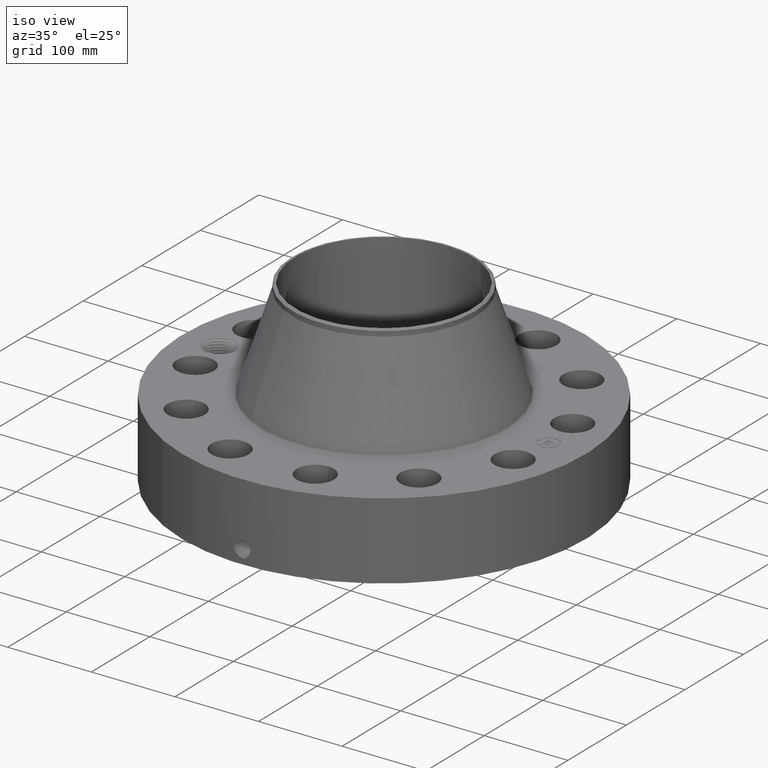
[diagram: clean part render]
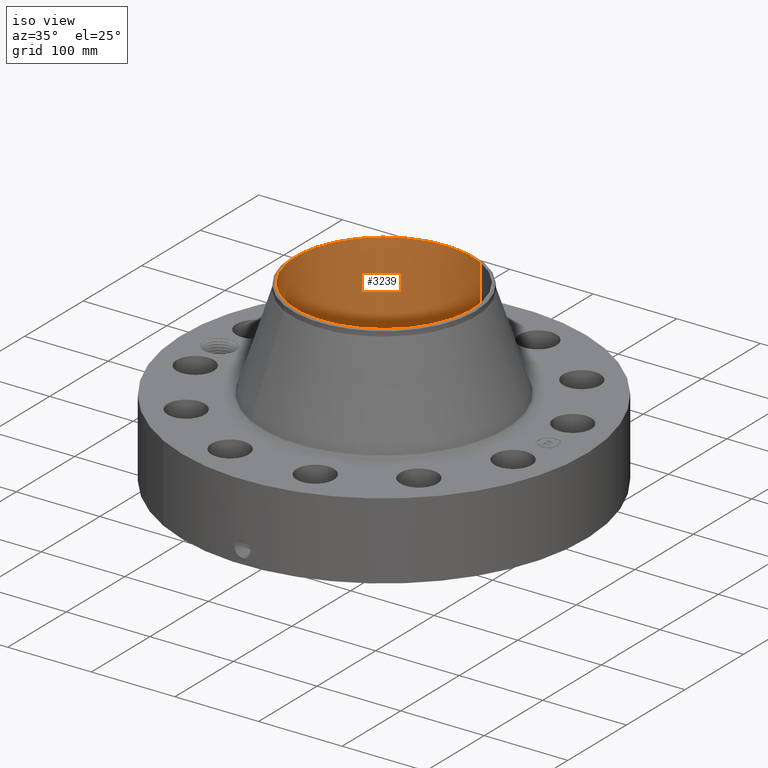
[diagram: same view with one face highlighted and labeled with its STEP entity id]
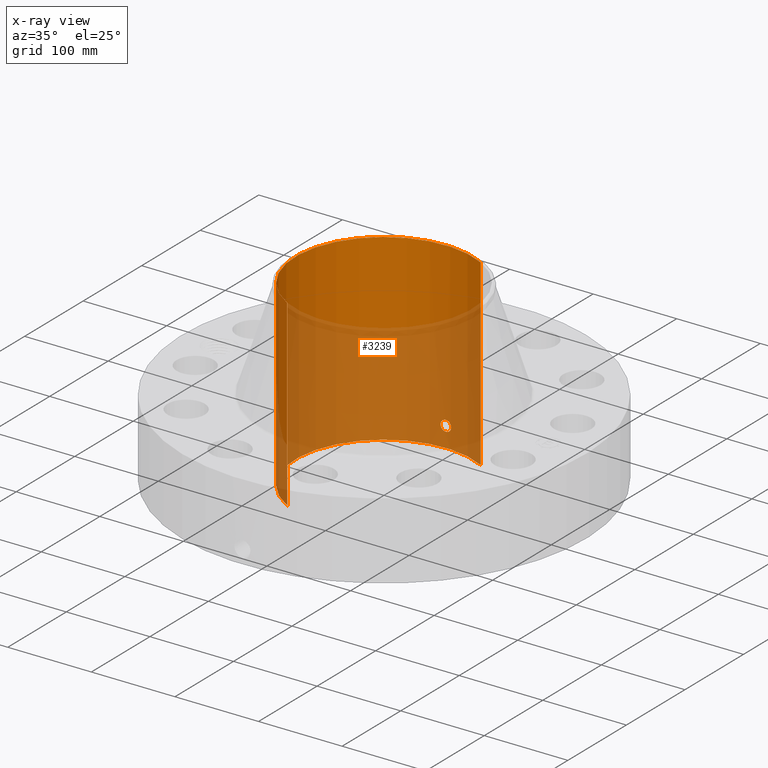
[diagram: x-ray of the same camera — body ghosted, the highlighted face saturated]
A machine part, iso view. The second image highlights one B-rep face of the part: STEP entity #3239.
The next image is the same camera in x-ray: the body ghosted, the highlighted face saturated — about 60% of this face is hidden behind the body in this view.
In plain terms, the highlighted cylindrical surface (partial cylindrical patch) has radius 105.778 mm, axis along (0, 0, -1).
Its self-contained STEP definition (entity closure, byte-faithful):
#2413=AXIS2_PLACEMENT_3D('Circle Axis2P3D',#2411,#2412,$) ;
#3116=AXIS2_PLACEMENT_3D('Cylinder Axis2P3D',#3113,#3114,#3115) ;
#3188=AXIS2_PLACEMENT_3D('Circle Axis2P3D',#3186,#3187,$) ;
#2406=CARTESIAN_POINT('Vertex',(1.99656765553,3.65469257901,-8.95171950564E-015)) ;
#2408=CARTESIAN_POINT('Vertex',(-1.99656765553,-3.65469257901,-8.95171950564E-015)) ;
#2411=CARTESIAN_POINT('Axis2P3D Location',(0.,0.,0.)) ;
#3113=CARTESIAN_POINT('Axis2P3D Location',(0.,0.,4.31500000002)) ;
#3122=CARTESIAN_POINT('Vertex',(1.99656765553,3.65469257901,8.63000000003)) ;
#3124=CARTESIAN_POINT('Vertex',(-1.99656765553,-3.65469257901,8.63000000003)) ;
#3127=CARTESIAN_POINT('Line Origine',(1.99656765553,3.65469257901,4.31500000002)) ;
#3132=CARTESIAN_POINT('Line Origine',(-1.99656765553,-3.65469257901,4.31500000002)) ;
#3186=CARTESIAN_POINT('Axis2P3D Location',(0.,0.,8.63000000003)) ;
#3198=CARTESIAN_POINT('Control Point',(0.219395640473,4.15871684574,1.05985638466)) ;
#3199=CARTESIAN_POINT('Control Point',(0.20692186836,4.15937490719,1.08268947135)) ;
#3200=CARTESIAN_POINT('Control Point',(0.191479061047,4.16014270401,1.10389738261)) ;
#3201=CARTESIAN_POINT('Control Point',(0.173347293486,4.1609608761,1.12296790584)) ;
#3202=CARTESIAN_POINT('Control Point',(0.112151243799,4.16332681788,1.17243876121)) ;
#3203=CARTESIAN_POINT('Control Point',(0.0350073360277,4.16486395592,1.1959675291)) ;
#3204=CARTESIAN_POINT('Control Point',(-0.01953337657,4.16497917884,1.19761227522)) ;
#3205=CARTESIAN_POINT('Control Point',(-0.124110745792,4.16328840941,1.17248379)) ;
#3206=CARTESIAN_POINT('Control Point',(-0.20315085596,4.15978664497,1.09960368609)) ;
#3207=CARTESIAN_POINT('Control Point',(-0.232136287471,4.15806151485,1.05340662425)) ;
#3208=CARTESIAN_POINT('Control Point',(-0.255828007402,4.15663977824,0.975243495852)) ;
#3209=CARTESIAN_POINT('Control Point',(-0.248304892343,4.15709084731,0.895837624091)) ;
#3210=CARTESIAN_POINT('Control Point',(-0.242070589597,4.15747019708,0.869239689276)) ;
#3211=CARTESIAN_POINT('Control Point',(-0.23232906595,4.15803453501,0.843818091886)) ;
#3212=CARTESIAN_POINT('Control Point',(-0.219395640473,4.15871684574,0.820143615352)) ;
#3213=CARTESIAN_POINT('Vertex',(0.219395640473,4.15871684574,1.05985638466)) ;
#3215=CARTESIAN_POINT('Vertex',(-0.219395640473,4.15871684574,0.820143615352)) ;
#3219=CARTESIAN_POINT('Control Point',(-0.219395640473,4.15871684574,0.820143615352)) ;
#3220=CARTESIAN_POINT('Control Point',(-0.206921868349,4.15937490719,0.797310528635)) ;
#3221=CARTESIAN_POINT('Control Point',(-0.19147906102,4.16014270401,0.776102617358)) ;
#3222=CARTESIAN_POINT('Control Point',(-0.173347293524,4.1609608761,0.757032094201)) ;
#3223=CARTESIAN_POINT('Control Point',(-0.112151243813,4.16332681788,0.707561238792)) ;
#3224=CARTESIAN_POINT('Control Point',(-0.0350073360044,4.16486395592,0.684032470899)) ;
#3225=CARTESIAN_POINT('Control Point',(0.0195333765379,4.16497917884,0.682387724782)) ;
#3226=CARTESIAN_POINT('Control Point',(0.124110745843,4.16328840941,0.707516210014)) ;
#3227=CARTESIAN_POINT('Control Point',(0.203150856055,4.15978664497,0.780396314006)) ;
#3228=CARTESIAN_POINT('Control Point',(0.23213628743,4.15806151485,0.826593375624)) ;
#3229=CARTESIAN_POINT('Control Point',(0.255828007413,4.15663977824,0.904756504105)) ;
#3230=CARTESIAN_POINT('Control Point',(0.24830489234,4.15709084731,0.984162375949)) ;
#3231=CARTESIAN_POINT('Control Point',(0.24207058961,4.15747019708,1.0107603107)) ;
#3232=CARTESIAN_POINT('Control Point',(0.232329065959,4.158034535,1.03618190811)) ;
#3233=CARTESIAN_POINT('Control Point',(0.219395640473,4.15871684574,1.05985638466)) ;
#2412=DIRECTION('Axis2P3D Direction',(0.,0.,-0.0393700787402)) ;
#3114=DIRECTION('Axis2P3D Direction',(0.,0.,-0.0393700787402)) ;
#3115=DIRECTION('Axis2P3D XDirection',(-0.0188750212049,-0.0345504945626,0.)) ;
#3128=DIRECTION('Vector Direction',(0.,0.,-0.0393700787402)) ;
#3133=DIRECTION('Vector Direction',(0.,0.,-0.0393700787402)) ;
#3187=DIRECTION('Axis2P3D Direction',(0.,0.,-0.0393700787402)) ;
#3129=VECTOR('Line Direction',#3128,0.0393700787402) ;
#3134=VECTOR('Line Direction',#3133,0.0393700787402) ;
#3192=ORIENTED_EDGE('',*,*,#3190,.F.) ;
#3193=ORIENTED_EDGE('',*,*,#3136,.T.) ;
#3194=ORIENTED_EDGE('',*,*,#2415,.T.) ;
#3195=ORIENTED_EDGE('',*,*,#3131,.F.) ;
#3236=ORIENTED_EDGE('',*,*,#3217,.F.) ;
#3237=ORIENTED_EDGE('',*,*,#3234,.F.) ;
#3238=FACE_BOUND('',#3235,.T.) ;
#3239=ADVANCED_FACE('PartBody',(#3196,#3238),#3117,.F.) ;
#3197=B_SPLINE_CURVE_WITH_KNOTS('',5,(#3198,#3199,#3200,#3201,#3202,#3203,#3204,#3205,#3206,#3207,#3208,#3209,#3210,#3211,#3212),.UNSPECIFIED.,.F.,.U.,(6,3,3,3,6),(0.,4.67448989457,14.0215946083,23.3715523566,28.2182952776),.UNSPECIFIED.) ;
#3218=B_SPLINE_CURVE_WITH_KNOTS('',5,(#3219,#3220,#3221,#3222,#3223,#3224,#3225,#3226,#3227,#3228,#3229,#3230,#3231,#3232,#3233),.UNSPECIFIED.,.F.,.U.,(6,3,3,3,6),(0.,4.67448989861,14.0215946148,23.3715523746,28.2182952989),.UNSPECIFIED.) ;
#2414=CIRCLE('generated circle',#2413,4.16450000002) ;
#3189=CIRCLE('generated circle',#3188,4.16450000002) ;
#3117=CYLINDRICAL_SURFACE('generated cylinder',#3116,4.16450000002) ;
#2415=EDGE_CURVE('',#2409,#2407,#2414,.T.) ;
#3131=EDGE_CURVE('',#3123,#2407,#3130,.T.) ;
#3136=EDGE_CURVE('',#3125,#2409,#3135,.T.) ;
#3190=EDGE_CURVE('',#3125,#3123,#3189,.T.) ;
#3217=EDGE_CURVE('',#3214,#3216,#3197,.T.) ;
#3234=EDGE_CURVE('',#3216,#3214,#3218,.T.) ;
#3191=EDGE_LOOP('',(#3192,#3193,#3194,#3195)) ;
#3235=EDGE_LOOP('',(#3236,#3237)) ;
#3196=FACE_OUTER_BOUND('',#3191,.T.) ;
#3130=LINE('Line',#3127,#3129) ;
#3135=LINE('Line',#3132,#3134) ;
#2407=VERTEX_POINT('',#2406) ;
#2409=VERTEX_POINT('',#2408) ;
#3123=VERTEX_POINT('',#3122) ;
#3125=VERTEX_POINT('',#3124) ;
#3214=VERTEX_POINT('',#3213) ;
#3216=VERTEX_POINT('',#3215) ;